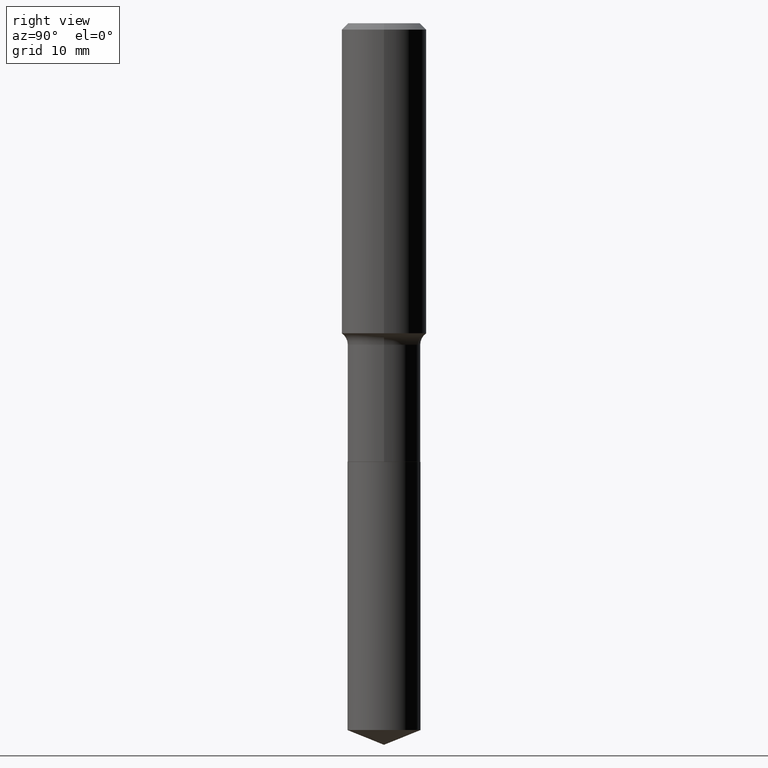
[diagram: clean part render]
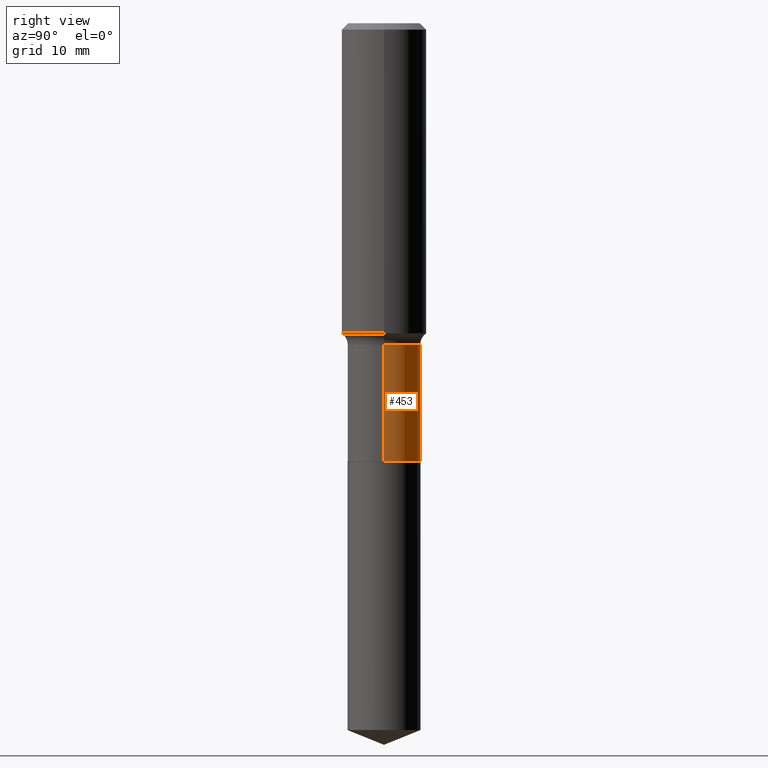
[diagram: same view with one face highlighted and labeled with its STEP entity id]
A machine part, right view. The second image highlights one B-rep face of the part: STEP entity #453.
In plain terms, the highlighted cylindrical surface (edge-blend (fillet) strip) has radius 5.1587 mm, axis along (-0, 0, 1).
Its self-contained STEP definition (entity closure, byte-faithful):
#1 = EDGE_CURVE ( 'NONE', #73, #65, #165, .T. ) ;
#10 = DIRECTION ( 'NONE',  ( -2.445468806185136597E-29, 3.491481338843145583E-15, 1.000000000000000000 ) ) ;
#23 = VECTOR ( 'NONE', #489, 39.37007874015748143 ) ;
#35 = DIRECTION ( 'NONE',  ( 1.000000000000000000, -6.982962677686266711E-15, 4.876176775795935793E-29 ) ) ;
#65 = VERTEX_POINT ( 'NONE', #403 ) ;
#73 = VERTEX_POINT ( 'NONE', #328 ) ;
#81 = DIRECTION ( 'NONE',  ( -2.445468806185136877E-29, 3.491481338843145188E-15, 1.000000000000000000 ) ) ;
#84 = DIRECTION ( 'NONE',  ( -2.445468806185136597E-29, 3.491481338843145583E-15, 1.000000000000000000 ) ) ;
#122 = DIRECTION ( 'NONE',  ( 1.000000000000000000, -6.982962677686265922E-15, 0.000000000000000000 ) ) ;
#165 = LINE ( 'NONE', #352, #23 ) ;
#207 = CARTESIAN_POINT ( 'NONE',  ( 0.2031000000000000583, -9.938850779150892237E-15, -2.440399999999999903 ) ) ;
#221 = VERTEX_POINT ( 'NONE', #207 ) ;
#236 = CARTESIAN_POINT ( 'NONE',  ( 0.000000000000000000, 0.000000000000000000, 0.000000000000000000 ) ) ;
#241 = EDGE_CURVE ( 'NONE', #221, #390, #341, .T. ) ;
#250 = EDGE_CURVE ( 'NONE', #390, #65, #257, .T. ) ;
#257 = CIRCLE ( 'NONE', #320, 0.2030999999999999750 ) ;
#266 = FACE_OUTER_BOUND ( 'NONE', #284, .T. ) ;
#269 = ORIENTED_EDGE ( 'NONE', *, *, #1, .T. ) ;
#277 = DIRECTION ( 'NONE',  ( 1.000000000000000000, -6.982962677686262766E-15, 0.000000000000000000 ) ) ;
#282 = ORIENTED_EDGE ( 'NONE', *, *, #241, .F. ) ;
#284 = EDGE_LOOP ( 'NONE', ( #418, #269, #333, #282 ) ) ;
#286 = CIRCLE ( 'NONE', #370, 0.2031000000000000583 ) ;
#300 = CYLINDRICAL_SURFACE ( 'NONE', #321, 0.2031000000000000028 ) ;
#319 = CARTESIAN_POINT ( 'NONE',  ( 5.967922074614207358E-29, -8.520611059312812251E-15, -2.440399999999999903 ) ) ;
#320 = AXIS2_PLACEMENT_3D ( 'NONE', #456, #84, #122 ) ;
#321 = AXIS2_PLACEMENT_3D ( 'NONE', #236, #378, #35 ) ;
#328 = CARTESIAN_POINT ( 'NONE',  ( -0.2031000000000000583, -5.941021587190602993E-15, -2.440399999999999903 ) ) ;
#333 = ORIENTED_EDGE ( 'NONE', *, *, #250, .F. ) ;
#341 = LINE ( 'NONE', #351, #467 ) ;
#345 = EDGE_CURVE ( 'NONE', #221, #73, #286, .T. ) ;
#351 = CARTESIAN_POINT ( 'NONE',  ( 0.2031000000000000028, -1.418239719838080775E-15, 9.903515031641546145E-30 ) ) ;
#352 = CARTESIAN_POINT ( 'NONE',  ( -0.2031000000000000028, 1.443112296328763497E-15, -9.990357168307714203E-30 ) ) ;
#370 = AXIS2_PLACEMENT_3D ( 'NONE', #319, #10, #277 ) ;
#378 = DIRECTION ( 'NONE',  ( -2.445468806185136597E-29, 3.491481338843145583E-15, 1.000000000000000000 ) ) ;
#390 = VERTEX_POINT ( 'NONE', #415 ) ;
#403 = CARTESIAN_POINT ( 'NONE',  ( -0.2030999999999999750, -5.941021587190603782E-15, -1.789399999999999880 ) ) ;
#415 = CARTESIAN_POINT ( 'NONE',  ( 0.2030999999999999750, -7.665896427564004661E-15, -1.789399999999999880 ) ) ;
#418 = ORIENTED_EDGE ( 'NONE', *, *, #345, .T. ) ;
#453 = ADVANCED_FACE ( 'NONE', ( #266 ), #300, .T. ) ;
#456 = CARTESIAN_POINT ( 'NONE',  ( 4.375921881787682519E-29, -6.247656707725923885E-15, -1.789399999999999880 ) ) ;
#467 = VECTOR ( 'NONE', #81, 39.37007874015748143 ) ;
#489 = DIRECTION ( 'NONE',  ( -2.445468806185136877E-29, 3.491481338843145188E-15, 1.000000000000000000 ) ) ;